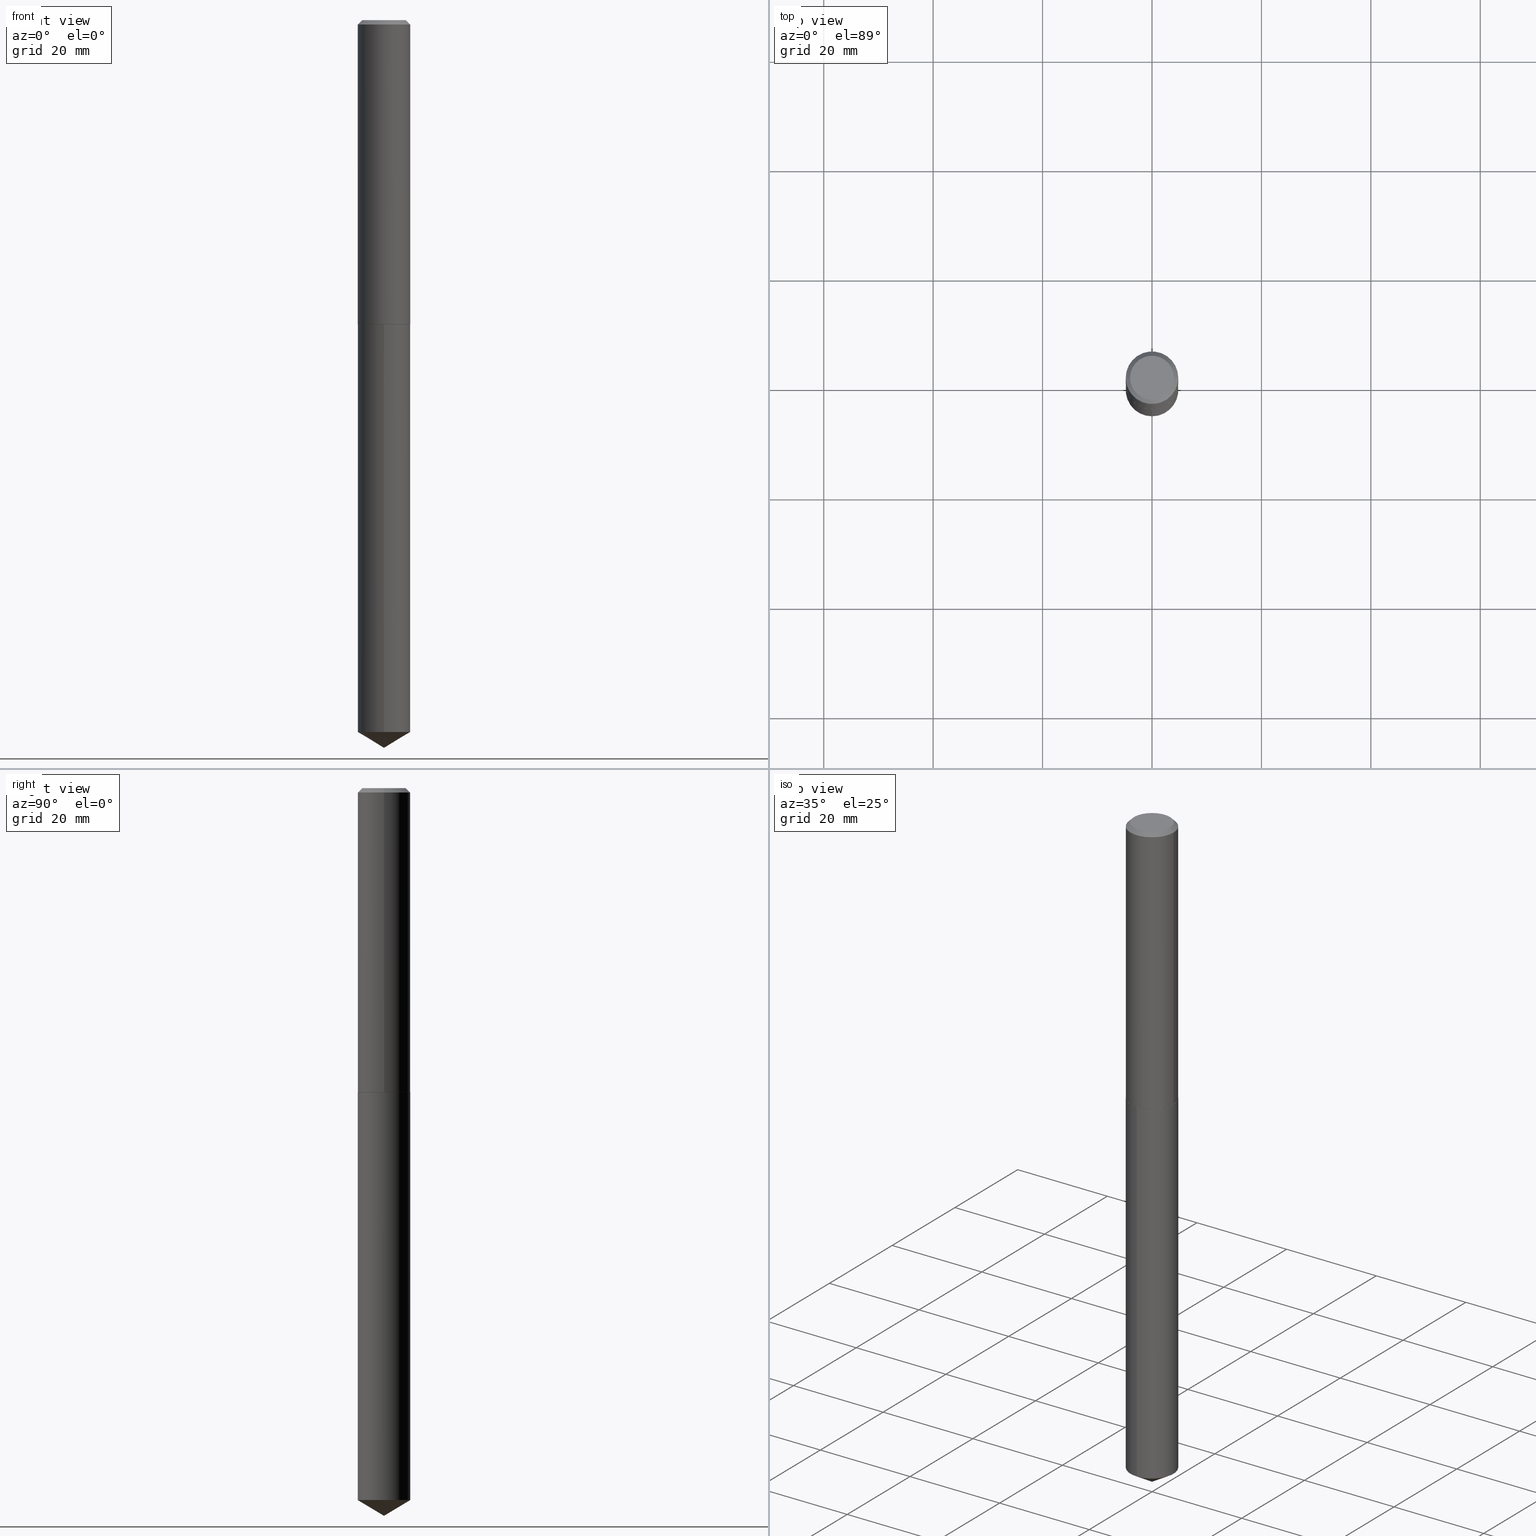
[diagram: canonical four-view strip — front | top / right | iso, engineering-drawing reading convention]
A machine part, canonical four-view strip (front | top / right | iso — engineering-drawing reading convention). The complete STEP part file that produces these views, byte-faithful:
ISO-10303-21;
HEADER;
FILE_DESCRIPTION (( 'STEP AP203' ),
    '1' );
FILE_NAME ('68362.STEP',
    '2024-04-23T13:16:03',
    ( '' ),
    ( '' ),
    'SwSTEP 2.0',
    'SolidWorks 2023',
    '' );
FILE_SCHEMA (( 'CONFIG_CONTROL_DESIGN' ));
ENDSEC;

DATA;
#1 = DIRECTION ( 'NONE',  ( 1.000000000000000000, -6.982962677686266711E-15, 0.000000000000000000 ) ) ;
#2 = ORIENTED_EDGE ( 'NONE', *, *, #339, .F. ) ;
#3 = DATE_AND_TIME ( #362, #213 ) ;
#4 = EDGE_LOOP ( 'NONE', ( #274, #103 ) ) ;
#5 = APPROVAL_STATUS ( 'not_yet_approved' ) ;
#6 = AXIS2_PLACEMENT_3D ( 'NONE', #256, #108, #229 ) ;
#7 = AXIS2_PLACEMENT_3D ( 'NONE', #215, #367, #252 ) ;
#8 = ORIENTED_EDGE ( 'NONE', *, *, #378, .T. ) ;
#9 = ORIENTED_EDGE ( 'NONE', *, *, #69, .F. ) ;
#10 = DIRECTION ( 'NONE',  ( -6.982962677686265922E-15, -1.000000000000000000, 2.890844437739961472E-15 ) ) ;
#11 = DIRECTION ( 'NONE',  ( -2.445468806185136877E-29, 3.491481338843145188E-15, 1.000000000000000000 ) ) ;
#12 = CARTESIAN_POINT ( 'NONE',  ( 1.280483352842773954E-28, -1.828228108969399449E-14, -5.236200000000000188 ) ) ;
#13 = VECTOR ( 'NONE', #248, 39.37007874015748854 ) ;
#14 = CC_DESIGN_APPROVAL ( #300, ( #234 ) ) ;
#15 = LINE ( 'NONE', #138, #22 ) ;
#16 = DIRECTION ( 'NONE',  ( -2.445468806185136597E-29, 3.491481338843145583E-15, 1.000000000000000000 ) ) ;
#17 = CC_DESIGN_PERSON_AND_ORGANIZATION_ASSIGNMENT ( #273, #305, ( #79 ) ) ;
#18 = DIRECTION ( 'NONE',  ( -1.000000000000000000, 6.982962677686266711E-15, 0.000000000000000000 ) ) ;
#19 = ADVANCED_FACE ( 'NONE', ( #366 ), #167, .T. ) ;
#20 = DIRECTION ( 'NONE',  ( 2.445468806185136597E-29, -3.491481338843145583E-15, -1.000000000000000000 ) ) ;
#21 = EDGE_CURVE ( 'NONE', #289, #169, #223, .T. ) ;
#22 = VECTOR ( 'NONE', #211, 39.37007874015748854 ) ;
#23 = VECTOR ( 'NONE', #278, 39.37007874015748143 ) ;
#24 = DIRECTION ( 'NONE',  ( -0.7071067811865452413, 2.468850131082233000E-15, -0.7071067811865497932 ) ) ;
#25 = DIRECTION ( 'NONE',  ( 2.445468806185136597E-29, -3.491481338843145583E-15, -1.000000000000000000 ) ) ;
#26 = VECTOR ( 'NONE', #307, 39.37007874015748143 ) ;
#27 = ADVANCED_FACE ( 'NONE', ( #46 ), #254, .F. ) ;
#28 = CARTESIAN_POINT ( 'NONE',  ( -0.1889999999999999736, -2.532182080361946817E-15, -0.03125000000000020817 ) ) ;
#29 = ORIENTED_EDGE ( 'NONE', *, *, #347, .T. ) ;
#30 = CC_DESIGN_DATE_AND_TIME_ASSIGNMENT ( #225, #280, ( #186 ) ) ;
#31 = CARTESIAN_POINT ( 'NONE',  ( 5.353131216739265831E-29, -7.642852650727648702E-15, -2.189000000000000501 ) ) ;
#32 = VECTOR ( 'NONE', #142, 39.37007874015748143 ) ;
#33 = AXIS2_PLACEMENT_3D ( 'NONE', #302, #147, #328 ) ;
#34 = DIRECTION ( 'NONE',  ( 2.445443934232408407E-29, -3.491516956895075563E-15, -1.000000000000000000 ) ) ;
#35 = EDGE_LOOP ( 'NONE', ( #38, #221, #82, #150 ) ) ;
#36 =( CONVERSION_BASED_UNIT ( 'INCH', #244 ) LENGTH_UNIT ( ) NAMED_UNIT ( #268 ) );
#37 = CARTESIAN_POINT ( 'NONE',  ( 5.353131216739265831E-29, -7.642852650727648702E-15, -2.189000000000000501 ) ) ;
#38 = ORIENTED_EDGE ( 'NONE', *, *, #53, .F. ) ;
#39 = VERTEX_POINT ( 'NONE', #165 ) ;
#40 = CONICAL_SURFACE ( 'NONE', #242, 0.1889999999999999736, 0.7853981633974450594 ) ;
#41 = ORIENTED_EDGE ( 'NONE', *, *, #378, .F. ) ;
#42 = CYLINDRICAL_SURFACE ( 'NONE', #84, 0.1889999999999999736 ) ;
#43 = ORIENTED_EDGE ( 'NONE', *, *, #154, .F. ) ;
#44 = CARTESIAN_POINT ( 'NONE',  ( 5.351908482336173029E-29, -7.641106910058226410E-15, -2.188500000000000778 ) ) ;
#45 = ADVANCED_FACE ( 'NONE', ( #191 ), #341, .T. ) ;
#46 = FACE_OUTER_BOUND ( 'NONE', #4, .T. ) ;
#47 = DIRECTION ( 'NONE',  ( 1.000000000000000000, -6.982962677686266711E-15, 0.000000000000000000 ) ) ;
#48 = PERSON_AND_ORGANIZATION ( #62, #351 ) ;
#49 = VECTOR ( 'NONE', #11, 39.37007874015748143 ) ;
#50 = CC_DESIGN_APPROVAL ( #314, ( #388 ) ) ;
#51 = VERTEX_POINT ( 'NONE', #284 ) ;
#52 = CARTESIAN_POINT ( 'NONE',  ( 5.353131216739265831E-29, -7.642852650727648702E-15, -2.189000000000000945 ) ) ;
#53 = EDGE_CURVE ( 'NONE', #387, #354, #226, .T. ) ;
#54 = PLANE ( 'NONE',  #269 ) ;
#55 = COORDINATED_UNIVERSAL_TIME_OFFSET ( 5, 0, .BEHIND. ) ;
#56 = ADVANCED_FACE ( 'NONE', ( #133 ), #355, .T. ) ;
#57 = DIRECTION ( 'NONE',  ( -2.445443934232408407E-29, 3.491516956895075958E-15, 1.000000000000000000 ) ) ;
#58 = AXIS2_PLACEMENT_3D ( 'NONE', #52, #170, #47 ) ;
#59 = CARTESIAN_POINT ( 'NONE',  ( -0.1577499999999999736, 1.156116758324431759E-15, 4.837354856553074411E-19 ) ) ;
#60 = APPROVAL_PERSON_ORGANIZATION ( #260, #314, #168 ) ;
#61 = EDGE_CURVE ( 'NONE', #212, #39, #15, .T. ) ;
#62 = PERSON ( 'UNSPECIFIED', 'UNSPECIFIED', 'UNSPECIFIED', ('UNSPECIFIED'), ('UNSPECIFIED'), ('UNSPECIFIED') ) ;
#63 = LINE ( 'NONE', #123, #13 ) ;
#64 = ORIENTED_EDGE ( 'NONE', *, *, #85, .F. ) ;
#65 = PERSON_AND_ORGANIZATION ( #62, #351 ) ;
#66 = FACE_OUTER_BOUND ( 'NONE', #309, .T. ) ;
#67 = EDGE_LOOP ( 'NONE', ( #361, #8, #272 ) ) ;
#68 = PERSON_AND_ORGANIZATION_ROLE ( 'creator' ) ;
#69 = EDGE_CURVE ( 'NONE', #110, #354, #205, .T. ) ;
#70 = APPROVAL_STATUS ( 'not_yet_approved' ) ;
#71 = DIRECTION ( 'NONE',  ( 1.000000000000000000, -6.982962677686265922E-15, 4.876176775795935793E-29 ) ) ;
#72 = CARTESIAN_POINT ( 'NONE',  ( 3.137840852838807074E-29, -1.081527453833033358E-14, -2.189000000000000501 ) ) ;
#73 = DIRECTION ( 'NONE',  ( -6.982962677686265922E-15, -1.000000000000000000, 5.781688875479922944E-15 ) ) ;
#74 = PERSON_AND_ORGANIZATION ( #62, #351 ) ;
#75 = EDGE_CURVE ( 'NONE', #39, #219, #382, .T. ) ;
#76 = CIRCLE ( 'NONE', #119, 0.1577499999999999736 ) ;
#77 = CARTESIAN_POINT ( 'NONE',  ( -8.347243227223815195E-28, 1.191790943937758643E-13, 34.13387874015747769 ) ) ;
#78 = SECURITY_CLASSIFICATION_LEVEL ( 'unclassified' ) ;
#79 = PRODUCT ( '68362', '68362', '', ( #129 ) ) ;
#80 = ORIENTED_EDGE ( 'NONE', *, *, #294, .F. ) ;
#81 = DIRECTION ( 'NONE',  ( -0.7071067811862817853, 7.493145998869393328E-15, 0.7071067811868130271 ) ) ;
#82 = ORIENTED_EDGE ( 'NONE', *, *, #335, .T. ) ;
#83 = FACE_OUTER_BOUND ( 'NONE', #189, .T. ) ;
#84 = AXIS2_PLACEMENT_3D ( 'NONE', #164, #285, #10 ) ;
#85 = EDGE_CURVE ( 'NONE', #219, #94, #324, .T. ) ;
#86 = CARTESIAN_POINT ( 'NONE',  ( 5.353131216739265831E-29, -7.642852650727648702E-15, -2.189000000000000501 ) ) ;
#87 = FACE_OUTER_BOUND ( 'NONE', #317, .T. ) ;
#88 = LOCAL_TIME ( 9, 16, 3.000000000000000000, #135 ) ;
#89 = CC_DESIGN_PERSON_AND_ORGANIZATION_ASSIGNMENT ( #190, #308, ( #234 ) ) ;
#90 = ADVANCED_FACE ( 'NONE', ( #87 ), #40, .T. ) ;
#91 = ORIENTED_EDGE ( 'NONE', *, *, #85, .T. ) ;
#92 = APPROVAL_PERSON_ORGANIZATION ( #340, #300, #127 ) ;
#93 = ORIENTED_EDGE ( 'NONE', *, *, #339, .T. ) ;
#94 = VERTEX_POINT ( 'NONE', #326 ) ;
#95 = APPROVAL_DATE_TIME ( #3, #300 ) ;
#96 = APPLICATION_CONTEXT ( 'configuration controlled 3d designs of mechanical parts and assemblies' ) ;
#97 = CONICAL_SURFACE ( 'NONE', #320, 0.1889999999999999736, 0.7853981633974450594 ) ;
#98 = DIRECTION ( 'NONE',  ( 1.000000000000000000, -6.982962677686266711E-15, 4.876176775795936353E-29 ) ) ;
#99 = COORDINATED_UNIVERSAL_TIME_OFFSET ( 5, 0, .BEHIND. ) ;
#100 = DIRECTION ( 'NONE',  ( -2.445468806185136597E-29, 3.491481338843145583E-15, 1.000000000000000000 ) ) ;
#101 = APPLICATION_CONTEXT ( 'configuration controlled 3d designs of mechanical parts and assemblies' ) ;
#102 = APPROVAL_DATE_TIME ( #330, #271 ) ;
#103 = ORIENTED_EDGE ( 'NONE', *, *, #197, .F. ) ;
#104 = DIRECTION ( 'NONE',  ( 1.000000000000000000, -6.982962677686266711E-15, 0.000000000000000000 ) ) ;
#105 = CC_DESIGN_PERSON_AND_ORGANIZATION_ASSIGNMENT ( #336, #275, ( #186 ) ) ;
#106 = AXIS2_PLACEMENT_3D ( 'NONE', #131, #100, #98 ) ;
#107 = AXIS2_PLACEMENT_3D ( 'NONE', #31, #34, #303 ) ;
#108 = DIRECTION ( 'NONE',  ( -2.445468806185136597E-29, 3.491481338843145583E-15, 1.000000000000000000 ) ) ;
#109 = DIRECTION ( 'NONE',  ( -2.445468806185136597E-29, 3.491481338843145583E-15, 1.000000000000000000 ) ) ;
#110 = VERTEX_POINT ( 'NONE', #59 ) ;
#111 = DIRECTION ( 'NONE',  ( 2.438088387897960049E-29, -3.491481338843145188E-15, -1.000000000000000000 ) ) ;
#112 = DIRECTION ( 'NONE',  ( 1.000000000000000000, -6.982962677686266711E-15, 4.876176521701035620E-29 ) ) ;
#113 = PRODUCT_DEFINITION_SHAPE ( 'NONE', 'NONE',  #186 ) ;
#114 = CIRCLE ( 'NONE', #159, 0.1885000000000004727 ) ;
#115 = DIRECTION ( 'NONE',  ( -6.982962677686265922E-15, -1.000000000000000000, 5.781688875479922944E-15 ) ) ;
#116 = ADVANCED_FACE ( 'NONE', ( #245 ), #359, .T. ) ;
#117 = ORIENTED_EDGE ( 'NONE', *, *, #210, .T. ) ;
#118 = LINE ( 'NONE', #243, #204 ) ;
#119 = AXIS2_PLACEMENT_3D ( 'NONE', #206, #109, #112 ) ;
#120 = DIRECTION ( 'NONE',  ( -2.445468806185136597E-29, 3.491481338843145583E-15, 1.000000000000000000 ) ) ;
#121 = ORIENTED_EDGE ( 'NONE', *, *, #376, .F. ) ;
#122 = COORDINATED_UNIVERSAL_TIME_OFFSET ( 5, 0, .BEHIND. ) ;
#123 = CARTESIAN_POINT ( 'NONE',  ( 0.1890000000000002511, -8.960886856140933595E-15, -2.188500000000000778 ) ) ;
#124 = EDGE_LOOP ( 'NONE', ( #249, #346, #93, #9 ) ) ;
#125 = CARTESIAN_POINT ( 'NONE',  ( 0.1577499999999999736, -1.243993236283063660E-15, 4.837354856714027265E-19 ) ) ;
#126 = ORIENTED_EDGE ( 'NONE', *, *, #376, .T. ) ;
#127 = APPROVAL_ROLE ( '' ) ;
#128 = EDGE_LOOP ( 'NONE', ( #282, #196 ) ) ;
#129 = MECHANICAL_CONTEXT ( 'NONE', #101, 'mechanical' ) ;
#130 = EDGE_CURVE ( 'NONE', #214, #387, #345, .T. ) ;
#131 = CARTESIAN_POINT ( 'NONE',  ( 0.000000000000000000, 0.000000000000000000, 0.000000000000000000 ) ) ;
#132 = FACE_OUTER_BOUND ( 'NONE', #128, .T. ) ;
#133 = FACE_OUTER_BOUND ( 'NONE', #374, .T. ) ;
#134 = CARTESIAN_POINT ( 'NONE',  ( 1.342925770586714198E-15, 0.1889999999999820990, -5.122637343003793475 ) ) ;
#135 = COORDINATED_UNIVERSAL_TIME_OFFSET ( 5, 0, .BEHIND. ) ;
#136 = AXIS2_PLACEMENT_3D ( 'NONE', #44, #321, #264 ) ;
#137 =( LENGTH_UNIT ( ) NAMED_UNIT ( * ) SI_UNIT ( $, .METRE. ) );
#138 = CARTESIAN_POINT ( 'NONE',  ( 1.280483352842773954E-28, -1.828228108969399449E-14, -5.236200000000000188 ) ) ;
#139 = CARTESIAN_POINT ( 'NONE',  ( 0.000000000000000000, 0.000000000000000000, 0.000000000000000000 ) ) ;
#140 = CYLINDRICAL_SURFACE ( 'NONE', #281, 0.1889999999999999736 ) ;
#141 = ADVANCED_FACE ( 'NONE', ( #83 ), #371, .T. ) ;
#142 = DIRECTION ( 'NONE',  ( -2.445443934232408127E-29, 3.491516956895075563E-15, 1.000000000000000000 ) ) ;
#143 = AXIS2_PLACEMENT_3D ( 'NONE', #356, #120, #276 ) ;
#144 = CARTESIAN_POINT ( 'NONE',  ( 0.1890000000000002511, -8.960886856140933595E-15, -2.188500000000000778 ) ) ;
#145 = ADVANCED_FACE ( 'NONE', ( #369 ), #97, .T. ) ;
#146 = LINE ( 'NONE', #184, #26 ) ;
#147 = DIRECTION ( 'NONE',  ( -2.445468806185136597E-29, 3.491481338843145583E-15, 1.000000000000000000 ) ) ;
#148 = ORIENTED_EDGE ( 'NONE', *, *, #21, .F. ) ;
#149 = LINE ( 'NONE', #153, #23 ) ;
#150 = ORIENTED_EDGE ( 'NONE', *, *, #347, .F. ) ;
#151 = AXIS2_PLACEMENT_3D ( 'NONE', #174, #237, #239 ) ;
#152 = APPROVAL_PERSON_ORGANIZATION ( #65, #271, #333 ) ;
#153 = CARTESIAN_POINT ( 'NONE',  ( -1.319779946082650387E-15, -0.1890000000000076341, -2.189000000000000057 ) ) ;
#154 = EDGE_CURVE ( 'NONE', #94, #277, #238, .T. ) ;
#155 = ORIENTED_EDGE ( 'NONE', *, *, #177, .F. ) ;
#156 = APPLICATION_PROTOCOL_DEFINITION ( 'international standard', 'config_control_design', 1994, #101 ) ;
#157 = ADVANCED_FACE ( 'NONE', ( #265 ), #257, .T. ) ;
#158 = EDGE_LOOP ( 'NONE', ( #390, #91, #329, #121 ) ) ;
#159 = AXIS2_PLACEMENT_3D ( 'NONE', #295, #322, #104 ) ;
#160 = APPLICATION_PROTOCOL_DEFINITION ( 'international standard', 'config_control_design', 1994, #96 ) ;
#161 = CIRCLE ( 'NONE', #143, 0.1890000000000002511 ) ;
#162 = ADVANCED_FACE ( 'NONE', ( #172 ), #140, .T. ) ;
#163 = DIRECTION ( 'NONE',  ( -6.982962677686265922E-15, -1.000000000000000000, 3.468864327941552799E-15 ) ) ;
#164 = CARTESIAN_POINT ( 'NONE',  ( 5.353131216739265831E-29, -7.642852650727648702E-15, -2.189000000000000501 ) ) ;
#165 = CARTESIAN_POINT ( 'NONE',  ( -1.319779946082578995E-15, -0.1890000000000179037, -5.122637343003791699 ) ) ;
#166 = DIRECTION ( 'NONE',  ( -6.982962677686265922E-15, -1.000000000000000000, 2.890844437739961472E-15 ) ) ;
#167 = CYLINDRICAL_SURFACE ( 'NONE', #106, 0.1890000000000001124 ) ;
#168 = APPROVAL_ROLE ( '' ) ;
#169 = VERTEX_POINT ( 'NONE', #379 ) ;
#170 = DIRECTION ( 'NONE',  ( -2.445468806185136597E-29, 3.491481338843145583E-15, 1.000000000000000000 ) ) ;
#171 = EDGE_CURVE ( 'NONE', #289, #110, #76, .T. ) ;
#172 = FACE_OUTER_BOUND ( 'NONE', #372, .T. ) ;
#173 = CARTESIAN_POINT ( 'NONE',  ( 1.252717686242556790E-28, -1.788569717920600048E-14, -5.122637343003792587 ) ) ;
#174 = CARTESIAN_POINT ( 'NONE',  ( 5.351908482336173029E-29, -7.641106910058226410E-15, -2.188500000000000778 ) ) ;
#175 = CIRCLE ( 'NONE', #58, 0.1885000000000004727 ) ;
#176 = CIRCLE ( 'NONE', #342, 0.1889999999999999736 ) ;
#177 = EDGE_CURVE ( 'NONE', #219, #39, #188, .T. ) ;
#178 = CLOSED_SHELL ( 'NONE', ( #145, #19, #157, #27, #56, #116, #90, #207 ) ) ;
#179 = DIRECTION ( 'NONE',  ( -2.445468806185136597E-29, 3.491481338843145583E-15, 1.000000000000000000 ) ) ;
#180 = CARTESIAN_POINT ( 'NONE',  ( -1.319779946082650387E-15, -0.1890000000000076341, -2.189000000000000057 ) ) ;
#181 = ORIENTED_EDGE ( 'NONE', *, *, #386, .T. ) ;
#182 = CARTESIAN_POINT ( 'NONE',  ( 7.642090019328602662E-31, -1.091087918388490267E-16, -0.03125000000000020817 ) ) ;
#183 = ORIENTED_EDGE ( 'NONE', *, *, #177, .T. ) ;
#184 = CARTESIAN_POINT ( 'NONE',  ( 0.1890000000000001124, -1.319779946082705213E-15, 9.215974106254324926E-30 ) ) ;
#185 = ORIENTED_EDGE ( 'NONE', *, *, #383, .F. ) ;
#186 = PRODUCT_DEFINITION ( 'UNKNOWN', '', #234, #286 ) ;
#187 = DIRECTION ( 'NONE',  ( 1.000000000000000000, -6.982962677686266711E-15, 4.876176521701035620E-29 ) ) ;
#188 = CIRCLE ( 'NONE', #327, 0.1889999999999999736 ) ;
#189 = EDGE_LOOP ( 'NONE', ( #41, #313, #155 ) ) ;
#190 = PERSON_AND_ORGANIZATION ( #62, #351 ) ;
#191 = FACE_OUTER_BOUND ( 'NONE', #67, .T. ) ;
#192 = DIRECTION ( 'NONE',  ( -2.445443934232408407E-29, 3.491516956895075958E-15, 1.000000000000000000 ) ) ;
#193 = FACE_OUTER_BOUND ( 'NONE', #158, .T. ) ;
#194 = VECTOR ( 'NONE', #334, 39.37007874015748143 ) ;
#195 =( NAMED_UNIT ( * ) PLANE_ANGLE_UNIT ( ) SI_UNIT ( $, .RADIAN. ) );
#196 = ORIENTED_EDGE ( 'NONE', *, *, #171, .T. ) ;
#197 = EDGE_CURVE ( 'NONE', #214, #51, #114, .T. ) ;
#198 = CARTESIAN_POINT ( 'NONE',  ( 5.353131216739265831E-29, -7.642852650727648702E-15, -2.189000000000000501 ) ) ;
#199 = APPROVAL_DATE_TIME ( #292, #314 ) ;
#200 = ADVANCED_BREP_SHAPE_REPRESENTATION ( '68362', ( #236, #358, #7 ), #298 ) ;
#201 = CC_DESIGN_PERSON_AND_ORGANIZATION_ASSIGNMENT ( #48, #233, ( #388 ) ) ;
#202 = ORIENTED_EDGE ( 'NONE', *, *, #383, .T. ) ;
#203 = CARTESIAN_POINT ( 'NONE',  ( -0.1890000000000002511, -6.298181139471635866E-15, -2.188500000000000778 ) ) ;
#204 = VECTOR ( 'NONE', #389, 39.37007874015748143 ) ;
#205 = LINE ( 'NONE', #323, #266 ) ;
#206 = CARTESIAN_POINT ( 'NONE',  ( -1.182960040634176917E-47, 1.688953421129294557E-33, 4.837354856632017316E-19 ) ) ;
#207 = ADVANCED_FACE ( 'NONE', ( #132 ), #54, .F. ) ;
#208 = CLOSED_SHELL ( 'NONE', ( #220, #45, #141, #162, #353 ) ) ;
#209 = CIRCLE ( 'NONE', #350, 0.1577499999999999736 ) ;
#210 = EDGE_CURVE ( 'NONE', #51, #214, #175, .T. ) ;
#211 = DIRECTION ( 'NONE',  ( -5.985567269335961790E-15, -0.8571673007021131108, 0.5150380749100526012 ) ) ;
#212 = VERTEX_POINT ( 'NONE', #12 ) ;
#213 = LOCAL_TIME ( 9, 16, 3.000000000000000000, #122 ) ;
#214 = VERTEX_POINT ( 'NONE', #293 ) ;
#215 = CARTESIAN_POINT ( 'NONE',  ( 0.000000000000000000, 0.000000000000000000, 0.000000000000000000 ) ) ;
#216 = ORIENTED_EDGE ( 'NONE', *, *, #197, .T. ) ;
#217 = CALENDAR_DATE ( 2024, 23, 4 ) ;
#218 = AXIS2_PLACEMENT_3D ( 'NONE', #173, #57, #115 ) ;
#219 = VERTEX_POINT ( 'NONE', #134 ) ;
#220 = ADVANCED_FACE ( 'NONE', ( #193 ), #42, .T. ) ;
#221 = ORIENTED_EDGE ( 'NONE', *, *, #258, .T. ) ;
#222 = UNCERTAINTY_MEASURE_WITH_UNIT (LENGTH_MEASURE( 1.000000000000000082E-05 ), #36, 'distance_accuracy_value', 'NONE');
#223 = LINE ( 'NONE', #337, #194 ) ;
#224 = DIRECTION ( 'NONE',  ( -2.445443934232408407E-29, 3.491516956895075958E-15, 1.000000000000000000 ) ) ;
#225 = DATE_AND_TIME ( #283, #267 ) ;
#226 = LINE ( 'NONE', #287, #49 ) ;
#227 = AXIS2_PLACEMENT_3D ( 'NONE', #262, #192, #163 ) ;
#228 = LOCAL_TIME ( 9, 16, 3.000000000000000000, #55 ) ;
#229 = DIRECTION ( 'NONE',  ( 1.000000000000000000, -6.982962677686272233E-15, 0.000000000000000000 ) ) ;
#230 = CC_DESIGN_PERSON_AND_ORGANIZATION_ASSIGNMENT ( #74, #68, ( #234 ) ) ;
#231 = VERTEX_POINT ( 'NONE', #144 ) ;
#232 = DIRECTION ( 'NONE',  ( -1.000000000000000000, 6.982962677686265922E-15, -4.876176775795935793E-29 ) ) ;
#233 = PERSON_AND_ORGANIZATION_ROLE ( 'classification_officer' ) ;
#234 = PRODUCT_DEFINITION_FORMATION_WITH_SPECIFIED_SOURCE ( 'ANY', '', #79, .NOT_KNOWN. ) ;
#235 = DATE_TIME_ROLE ( 'classification_date' ) ;
#236 = MANIFOLD_SOLID_BREP ( 'Body-Move/Copy2[1]', #208 ) ;
#237 = DIRECTION ( 'NONE',  ( -2.445468806185136597E-29, 3.491481338843145583E-15, 1.000000000000000000 ) ) ;
#238 = CIRCLE ( 'NONE', #365, 0.1889999999999999736 ) ;
#239 = DIRECTION ( 'NONE',  ( 1.000000000000000000, -6.982962677686272233E-15, 0.000000000000000000 ) ) ;
#240 = DIRECTION ( 'NONE',  ( -2.445468806185136597E-29, 3.491481338843145583E-15, 1.000000000000000000 ) ) ;
#241 = ORIENTED_EDGE ( 'NONE', *, *, #335, .F. ) ;
#242 = AXIS2_PLACEMENT_3D ( 'NONE', #299, #25, #352 ) ;
#243 = CARTESIAN_POINT ( 'NONE',  ( 1.280494337266836659E-28, -1.828212515386264758E-14, -5.236200000000000188 ) ) ;
#244 = LENGTH_MEASURE_WITH_UNIT ( LENGTH_MEASURE( 0.02539999999999999897 ), #137 );
#245 = FACE_OUTER_BOUND ( 'NONE', #35, .T. ) ;
#246 = DIRECTION ( 'NONE',  ( -2.445443934232408407E-29, 3.491516956895075958E-15, 1.000000000000000000 ) ) ;
#247 = ORIENTED_EDGE ( 'NONE', *, *, #130, .T. ) ;
#248 = DIRECTION ( 'NONE',  ( 0.7071067811862817853, -2.468850131079474354E-15, 0.7071067811868130271 ) ) ;
#249 = ORIENTED_EDGE ( 'NONE', *, *, #171, .F. ) ;
#250 = CIRCLE ( 'NONE', #301, 0.1889999999999999736 ) ;
#251 = ORIENTED_EDGE ( 'NONE', *, *, #294, .T. ) ;
#252 = DIRECTION ( 'NONE',  ( 1.000000000000000000, 0.000000000000000000, 0.000000000000000000 ) ) ;
#253 = ORIENTED_EDGE ( 'NONE', *, *, #53, .T. ) ;
#254 = PLANE ( 'NONE',  #312 ) ;
#255 = DIRECTION ( 'NONE',  ( -6.982962677686265922E-15, -1.000000000000000000, 2.890844437739961472E-15 ) ) ;
#256 = CARTESIAN_POINT ( 'NONE',  ( 5.351908482336173029E-29, -7.641106910058226410E-15, -2.188500000000000778 ) ) ;
#257 = CONICAL_SURFACE ( 'NONE', #136, 0.1890000000000002511, 0.7853981633970726906 ) ;
#258 = EDGE_CURVE ( 'NONE', #387, #231, #325, .T. ) ;
#259 = CC_DESIGN_SECURITY_CLASSIFICATION ( #388, ( #234 ) ) ;
#260 = PERSON_AND_ORGANIZATION ( #62, #351 ) ;
#261 = CC_DESIGN_APPROVAL ( #271, ( #186 ) ) ;
#262 = CARTESIAN_POINT ( 'NONE',  ( -8.347243227223815195E-28, 1.191790943937758643E-13, 34.13387874015747769 ) ) ;
#263 = CARTESIAN_POINT ( 'NONE',  ( 7.642090019328602662E-31, -1.091087918388490267E-16, -0.03125000000000020817 ) ) ;
#264 = DIRECTION ( 'NONE',  ( 1.000000000000000000, -6.982962677686272233E-15, 0.000000000000000000 ) ) ;
#265 = FACE_OUTER_BOUND ( 'NONE', #310, .T. ) ;
#266 = VECTOR ( 'NONE', #24, 39.37007874015748143 ) ;
#267 = LOCAL_TIME ( 9, 16, 3.000000000000000000, #311 ) ;
#268 = DIMENSIONAL_EXPONENTS ( 1.000000000000000000, 0.000000000000000000, 0.000000000000000000, 0.000000000000000000, 0.000000000000000000, 0.000000000000000000, 0.000000000000000000 ) ;
#269 = AXIS2_PLACEMENT_3D ( 'NONE', #375, #111, #232 ) ;
#270 = ORIENTED_EDGE ( 'NONE', *, *, #130, .F. ) ;
#271 = APPROVAL ( #70, 'UNSPECIFIED' ) ;
#272 = ORIENTED_EDGE ( 'NONE', *, *, #75, .F. ) ;
#273 = PERSON_AND_ORGANIZATION ( #62, #351 ) ;
#274 = ORIENTED_EDGE ( 'NONE', *, *, #210, .F. ) ;
#275 = PERSON_AND_ORGANIZATION_ROLE ( 'creator' ) ;
#276 = DIRECTION ( 'NONE',  ( 1.000000000000000000, -6.982962677686272233E-15, 0.000000000000000000 ) ) ;
#277 = VERTEX_POINT ( 'NONE', #180 ) ;
#278 = DIRECTION ( 'NONE',  ( -2.445443934232408127E-29, 3.491516956895075563E-15, 1.000000000000000000 ) ) ;
#279 = EDGE_CURVE ( 'NONE', #110, #289, #209, .T. ) ;
#280 = DATE_TIME_ROLE ( 'creation_date' ) ;
#281 = AXIS2_PLACEMENT_3D ( 'NONE', #86, #224, #166 ) ;
#282 = ORIENTED_EDGE ( 'NONE', *, *, #279, .T. ) ;
#283 = CALENDAR_DATE ( 2024, 23, 4 ) ;
#284 = CARTESIAN_POINT ( 'NONE',  ( 0.1885000000000004727, -8.959141115471512880E-15, -2.189000000000000945 ) ) ;
#285 = DIRECTION ( 'NONE',  ( -2.445443934232408407E-29, 3.491516956895075958E-15, 1.000000000000000000 ) ) ;
#286 = DESIGN_CONTEXT ( 'detailed design', #96, 'design' ) ;
#287 = CARTESIAN_POINT ( 'NONE',  ( -0.1890000000000001124, 1.342925770586590150E-15, -9.296787320581778267E-30 ) ) ;
#288 = SHAPE_DEFINITION_REPRESENTATION ( #113, #200 ) ;
#289 = VERTEX_POINT ( 'NONE', #125 ) ;
#290 = AXIS2_PLACEMENT_3D ( 'NONE', #139, #16, #318 ) ;
#291 = DIRECTION ( 'NONE',  ( -6.982962677686265922E-15, -1.000000000000000000, 3.468864327941552799E-15 ) ) ;
#292 = DATE_AND_TIME ( #381, #228 ) ;
#293 = CARTESIAN_POINT ( 'NONE',  ( -0.1885000000000004727, -6.300830366645745489E-15, -2.189000000000000945 ) ) ;
#294 = EDGE_CURVE ( 'NONE', #51, #231, #63, .T. ) ;
#295 = CARTESIAN_POINT ( 'NONE',  ( 5.353131216739265831E-29, -7.642852650727648702E-15, -2.189000000000000945 ) ) ;
#296 = CARTESIAN_POINT ( 'NONE',  ( 1.342925770586642609E-15, 0.1889999999999923408, -2.189000000000000945 ) ) ;
#297 = VECTOR ( 'NONE', #81, 39.37007874015748854 ) ;
#298 =( GEOMETRIC_REPRESENTATION_CONTEXT ( 3 ) GLOBAL_UNCERTAINTY_ASSIGNED_CONTEXT ( ( #222 ) ) GLOBAL_UNIT_ASSIGNED_CONTEXT ( ( #36, #195, #357 ) ) REPRESENTATION_CONTEXT ( 'NONE', 'WORKASPACE' ) );
#299 = CARTESIAN_POINT ( 'NONE',  ( 7.642090019328602662E-31, -1.091087918388490267E-16, -0.03125000000000020817 ) ) ;
#300 = APPROVAL ( #5, 'UNSPECIFIED' ) ;
#301 = AXIS2_PLACEMENT_3D ( 'NONE', #182, #179, #1 ) ;
#302 = CARTESIAN_POINT ( 'NONE',  ( 7.642090019328602662E-31, -1.091087918388490267E-16, -0.03125000000000020817 ) ) ;
#303 = DIRECTION ( 'NONE',  ( 6.982962677686265922E-15, 1.000000000000000000, -3.491516956895075563E-15 ) ) ;
#304 = PLANE ( 'NONE',  #107 ) ;
#305 = PERSON_AND_ORGANIZATION_ROLE ( 'design_owner' ) ;
#306 = AXIS2_PLACEMENT_3D ( 'NONE', #77, #373, #291 ) ;
#307 = DIRECTION ( 'NONE',  ( -2.445468806185136877E-29, 3.491481338843145188E-15, 1.000000000000000000 ) ) ;
#308 = PERSON_AND_ORGANIZATION_ROLE ( 'design_supplier' ) ;
#309 = EDGE_LOOP ( 'NONE', ( #181, #344 ) ) ;
#310 = EDGE_LOOP ( 'NONE', ( #117, #247, #185, #80 ) ) ;
#311 = COORDINATED_UNIVERSAL_TIME_OFFSET ( 5, 0, .BEHIND. ) ;
#312 = AXIS2_PLACEMENT_3D ( 'NONE', #72, #368, #71 ) ;
#313 = ORIENTED_EDGE ( 'NONE', *, *, #61, .T. ) ;
#314 = APPROVAL ( #316, 'UNSPECIFIED' ) ;
#315 = EDGE_LOOP ( 'NONE', ( #202, #253, #2, #241 ) ) ;
#316 = APPROVAL_STATUS ( 'not_yet_approved' ) ;
#317 = EDGE_LOOP ( 'NONE', ( #148, #384, #319, #29 ) ) ;
#318 = DIRECTION ( 'NONE',  ( 1.000000000000000000, -6.982962677686266711E-15, 4.876176775795936353E-29 ) ) ;
#319 = ORIENTED_EDGE ( 'NONE', *, *, #69, .T. ) ;
#320 = AXIS2_PLACEMENT_3D ( 'NONE', #263, #20, #18 ) ;
#321 = DIRECTION ( 'NONE',  ( -2.445468806185136597E-29, 3.491481338843145583E-15, 1.000000000000000000 ) ) ;
#322 = DIRECTION ( 'NONE',  ( -2.445468806185136597E-29, 3.491481338843145583E-15, 1.000000000000000000 ) ) ;
#323 = CARTESIAN_POINT ( 'NONE',  ( -0.1889999999999999736, 1.210671154243855126E-15, -0.03125000000000020817 ) ) ;
#324 = LINE ( 'NONE', #296, #32 ) ;
#325 = CIRCLE ( 'NONE', #151, 0.1890000000000002511 ) ;
#326 = CARTESIAN_POINT ( 'NONE',  ( 1.342925770586714592E-15, 0.1889999999999923408, -2.189000000000000945 ) ) ;
#327 = AXIS2_PLACEMENT_3D ( 'NONE', #338, #377, #73 ) ;
#328 = DIRECTION ( 'NONE',  ( 1.000000000000000000, -6.982962677686266711E-15, 0.000000000000000000 ) ) ;
#329 = ORIENTED_EDGE ( 'NONE', *, *, #386, .F. ) ;
#330 = DATE_AND_TIME ( #217, #380 ) ;
#331 = CC_DESIGN_DATE_AND_TIME_ASSIGNMENT ( #343, #235, ( #388 ) ) ;
#332 = CIRCLE ( 'NONE', #33, 0.1889999999999999736 ) ;
#333 = APPROVAL_ROLE ( '' ) ;
#334 = DIRECTION ( 'NONE',  ( 0.7071067811865452413, -7.319954787623248157E-15, -0.7071067811865497932 ) ) ;
#335 = EDGE_CURVE ( 'NONE', #231, #169, #146, .T. ) ;
#336 = PERSON_AND_ORGANIZATION ( #62, #351 ) ;
#337 = CARTESIAN_POINT ( 'NONE',  ( 0.1889999999999999736, -1.405742913417668391E-15, -0.03125000000000020817 ) ) ;
#338 = CARTESIAN_POINT ( 'NONE',  ( 1.252717686242556790E-28, -1.788569717920600048E-14, -5.122637343003792587 ) ) ;
#339 = EDGE_CURVE ( 'NONE', #169, #354, #250, .T. ) ;
#340 = PERSON_AND_ORGANIZATION ( #62, #351 ) ;
#341 = CONICAL_SURFACE ( 'NONE', #227, 65.52281426576921319, 1.029744258676659641 ) ;
#342 = AXIS2_PLACEMENT_3D ( 'NONE', #37, #246, #360 ) ;
#343 = DATE_AND_TIME ( #370, #88 ) ;
#344 = ORIENTED_EDGE ( 'NONE', *, *, #154, .T. ) ;
#345 = LINE ( 'NONE', #203, #297 ) ;
#346 = ORIENTED_EDGE ( 'NONE', *, *, #21, .T. ) ;
#347 = EDGE_CURVE ( 'NONE', #354, #169, #332, .T. ) ;
#348 = DIRECTION ( 'NONE',  ( -2.445443934232408407E-29, 3.491516956895075958E-15, 1.000000000000000000 ) ) ;
#349 = PRODUCT_RELATED_PRODUCT_CATEGORY ( 'detail', '', ( #79 ) ) ;
#350 = AXIS2_PLACEMENT_3D ( 'NONE', #385, #240, #187 ) ;
#351 = ORGANIZATION ( 'UNSPECIFIED', 'UNSPECIFIED', '' ) ;
#352 = DIRECTION ( 'NONE',  ( -1.000000000000000000, 6.982962677686266711E-15, 0.000000000000000000 ) ) ;
#353 = ADVANCED_FACE ( 'NONE', ( #66 ), #304, .F. ) ;
#354 = VERTEX_POINT ( 'NONE', #28 ) ;
#355 = CONICAL_SURFACE ( 'NONE', #6, 0.1890000000000002511, 0.7853981633970726906 ) ;
#356 = CARTESIAN_POINT ( 'NONE',  ( 5.351908482336173029E-29, -7.641106910058226410E-15, -2.188500000000000778 ) ) ;
#357 =( NAMED_UNIT ( * ) SI_UNIT ( $, .STERADIAN. ) SOLID_ANGLE_UNIT ( ) );
#358 = MANIFOLD_SOLID_BREP ( 'Body-Move/Copy2[2]', #178 ) ;
#359 = CYLINDRICAL_SURFACE ( 'NONE', #290, 0.1890000000000001124 ) ;
#360 = DIRECTION ( 'NONE',  ( -6.982962677686265922E-15, -1.000000000000000000, 2.890844437739961472E-15 ) ) ;
#361 = ORIENTED_EDGE ( 'NONE', *, *, #61, .F. ) ;
#362 = CALENDAR_DATE ( 2024, 23, 4 ) ;
#363 = CARTESIAN_POINT ( 'NONE',  ( -0.1890000000000002511, -6.298181139471635866E-15, -2.188500000000000778 ) ) ;
#364 = ORIENTED_EDGE ( 'NONE', *, *, #258, .F. ) ;
#365 = AXIS2_PLACEMENT_3D ( 'NONE', #198, #348, #255 ) ;
#366 = FACE_OUTER_BOUND ( 'NONE', #315, .T. ) ;
#367 = DIRECTION ( 'NONE',  ( 0.000000000000000000, 0.000000000000000000, 1.000000000000000000 ) ) ;
#368 = DIRECTION ( 'NONE',  ( -2.438088387897960049E-29, 3.491481338843145188E-15, 1.000000000000000000 ) ) ;
#369 = FACE_OUTER_BOUND ( 'NONE', #124, .T. ) ;
#370 = CALENDAR_DATE ( 2024, 23, 4 ) ;
#371 = CONICAL_SURFACE ( 'NONE', #306, 65.52281426576921319, 1.029744258676659641 ) ;
#372 = EDGE_LOOP ( 'NONE', ( #64, #183, #126, #43 ) ) ;
#373 = DIRECTION ( 'NONE',  ( -2.445443934232408407E-29, 3.491516956895075958E-15, 1.000000000000000000 ) ) ;
#374 = EDGE_LOOP ( 'NONE', ( #270, #216, #251, #364 ) ) ;
#375 = CARTESIAN_POINT ( 'NONE',  ( -5.914800203170884586E-48, 8.444767105646472787E-34, 2.418677428316008658E-19 ) ) ;
#376 = EDGE_CURVE ( 'NONE', #39, #277, #149, .T. ) ;
#377 = DIRECTION ( 'NONE',  ( -2.445443934232408407E-29, 3.491516956895075958E-15, 1.000000000000000000 ) ) ;
#378 = EDGE_CURVE ( 'NONE', #212, #219, #118, .T. ) ;
#379 = CARTESIAN_POINT ( 'NONE',  ( 0.1889999999999999736, -1.428888737921553328E-15, -0.03125000000000020817 ) ) ;
#380 = LOCAL_TIME ( 9, 16, 3.000000000000000000, #99 ) ;
#381 = CALENDAR_DATE ( 2024, 23, 4 ) ;
#382 = CIRCLE ( 'NONE', #218, 0.1889999999999999736 ) ;
#383 = EDGE_CURVE ( 'NONE', #231, #387, #161, .T. ) ;
#384 = ORIENTED_EDGE ( 'NONE', *, *, #279, .F. ) ;
#385 = CARTESIAN_POINT ( 'NONE',  ( -1.182960040634176917E-47, 1.688953421129294557E-33, 4.837354856632017316E-19 ) ) ;
#386 = EDGE_CURVE ( 'NONE', #277, #94, #176, .T. ) ;
#387 = VERTEX_POINT ( 'NONE', #363 ) ;
#388 = SECURITY_CLASSIFICATION ( '', '', #78 ) ;
#389 = DIRECTION ( 'NONE',  ( 6.090539988449798946E-15, 0.8571673007021168855, 0.5150380749100467170 ) ) ;
#390 = ORIENTED_EDGE ( 'NONE', *, *, #75, .T. ) ;
ENDSEC;
END-ISO-10303-21;
